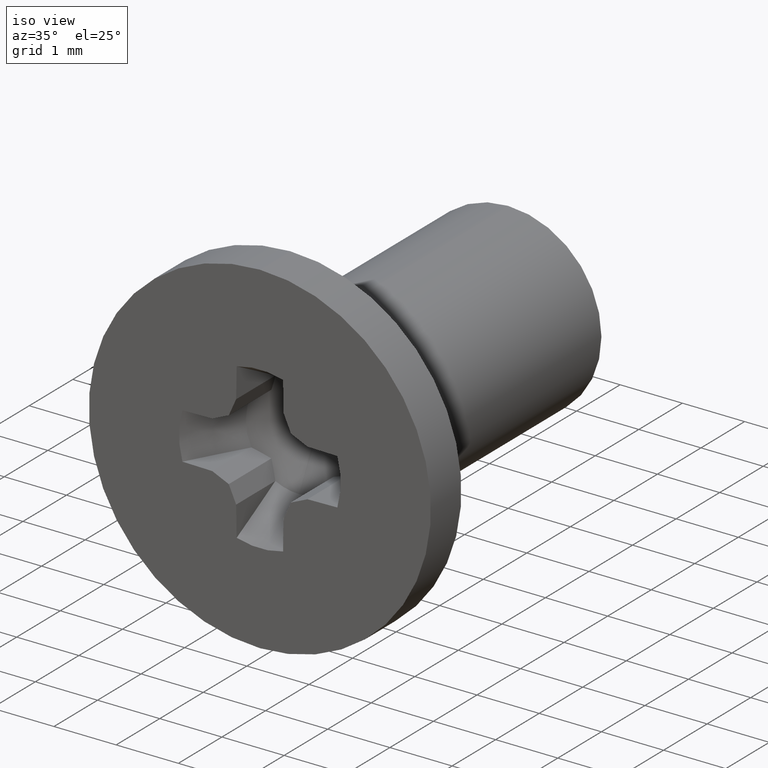
[diagram: clean part render]
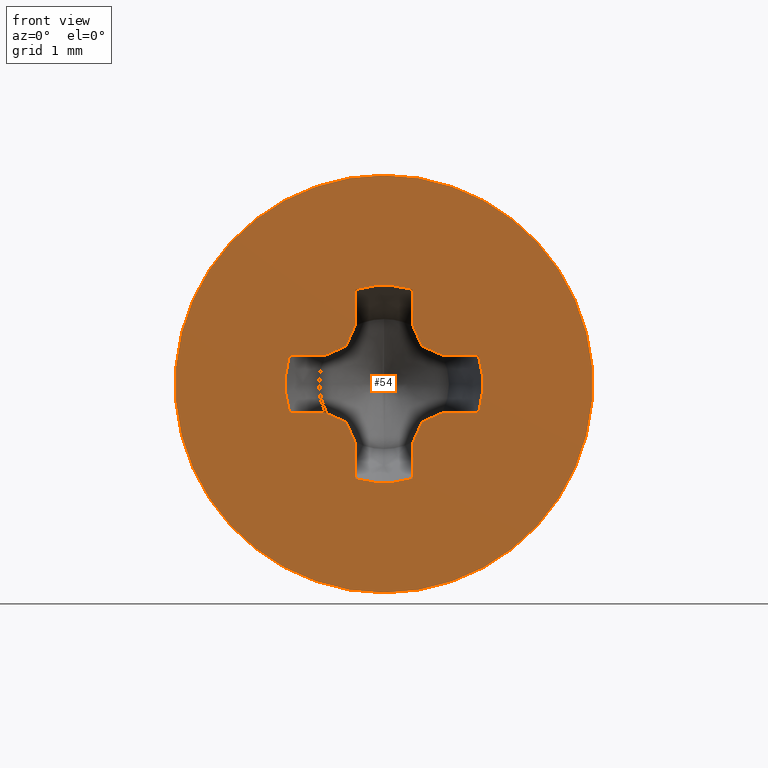
[diagram: tour spotlight — one face highlighted and labeled with its STEP entity id]
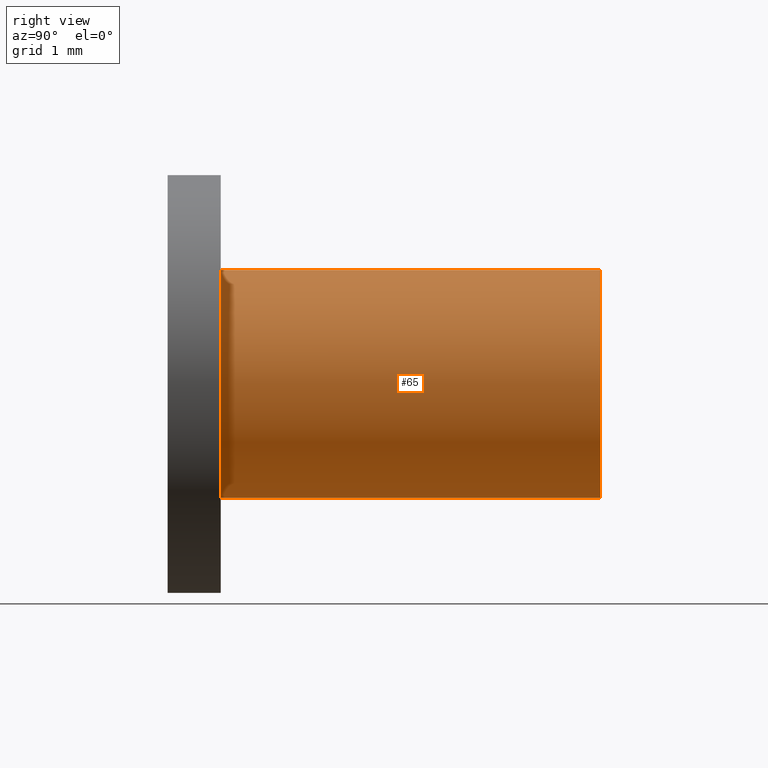
[diagram: tour spotlight — one face highlighted and labeled with its STEP entity id]
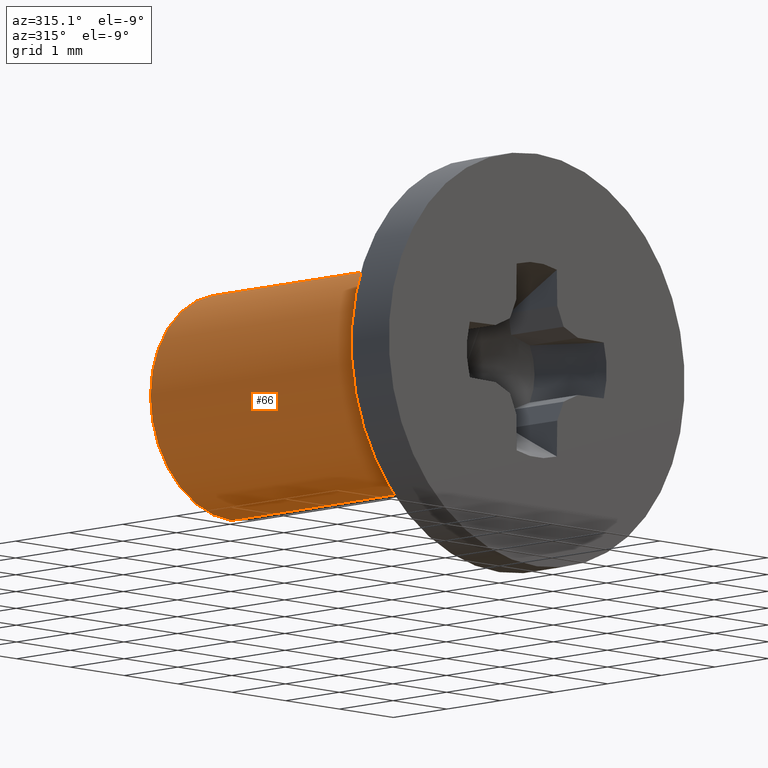
[diagram: tour spotlight — one face highlighted and labeled with its STEP entity id]
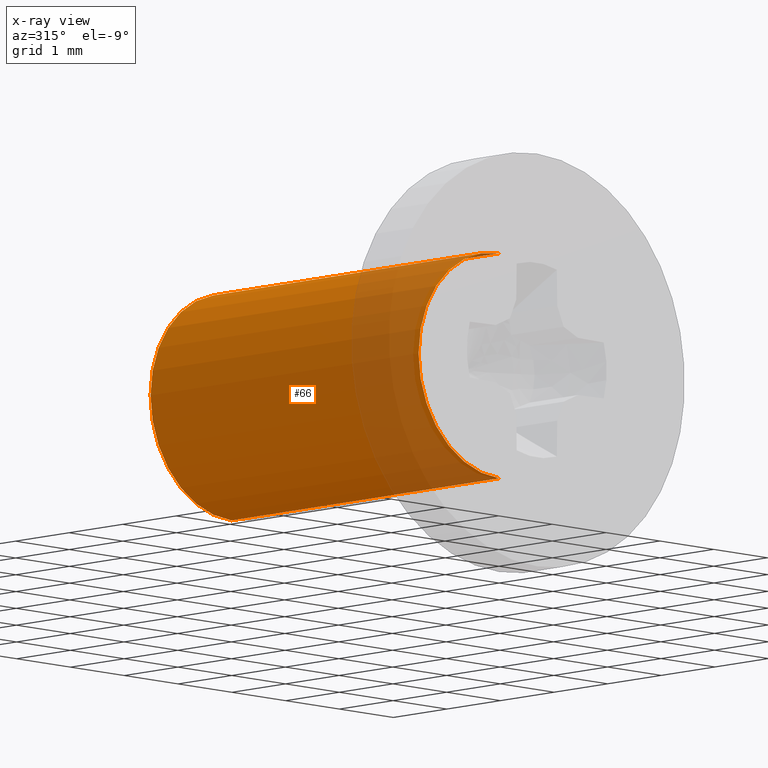
[diagram: x-ray of the same camera — body ghosted, this tour face saturated]
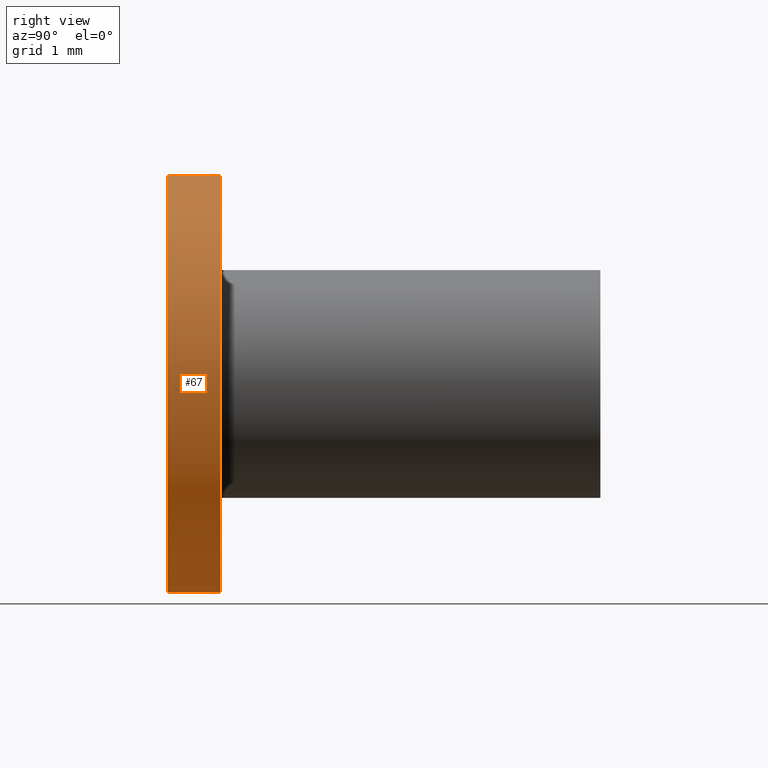
[diagram: tour spotlight — one face highlighted and labeled with its STEP entity id]
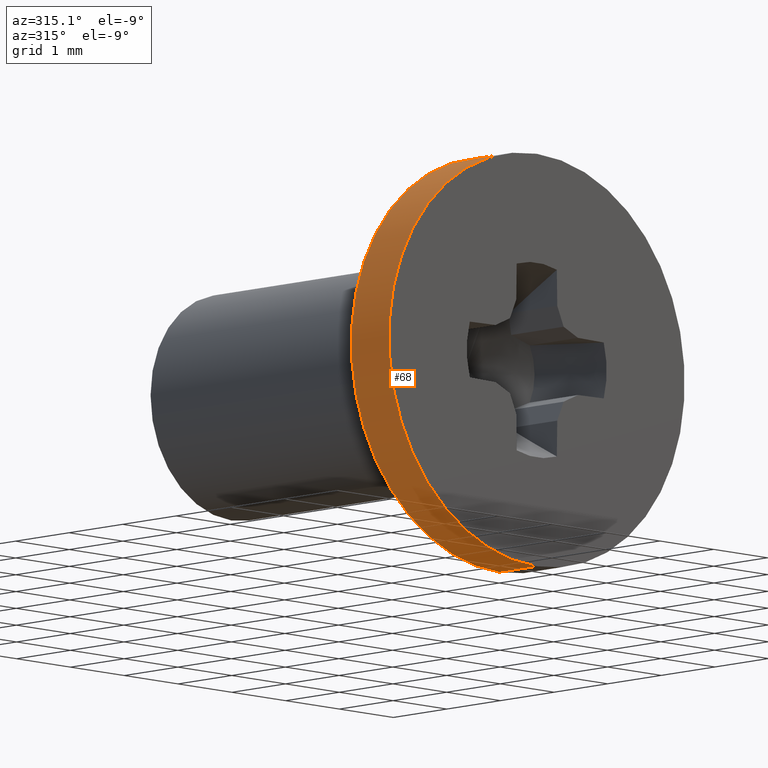
[diagram: tour spotlight — one face highlighted and labeled with its STEP entity id]
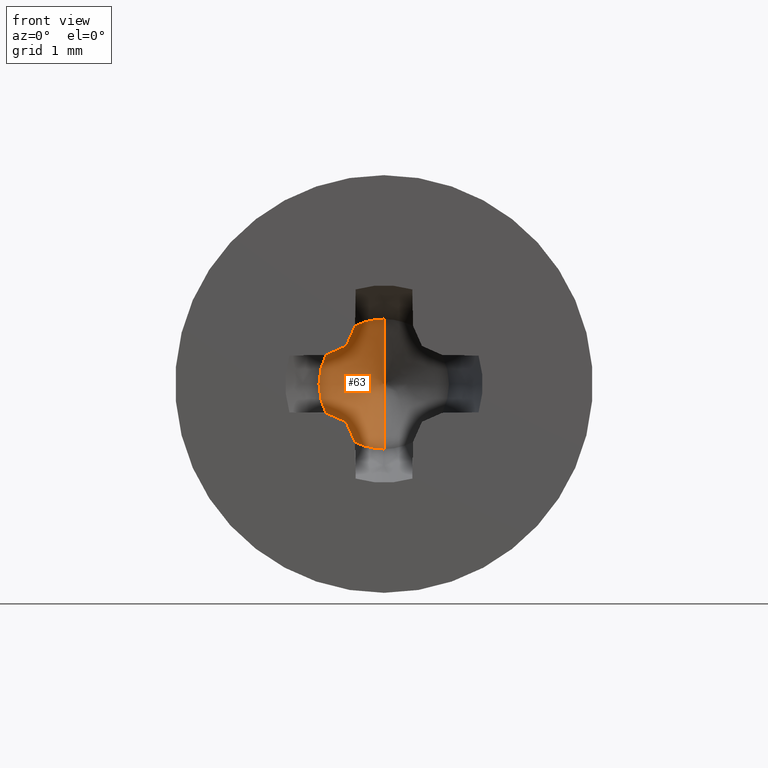
[diagram: tour spotlight — one face highlighted and labeled with its STEP entity id]
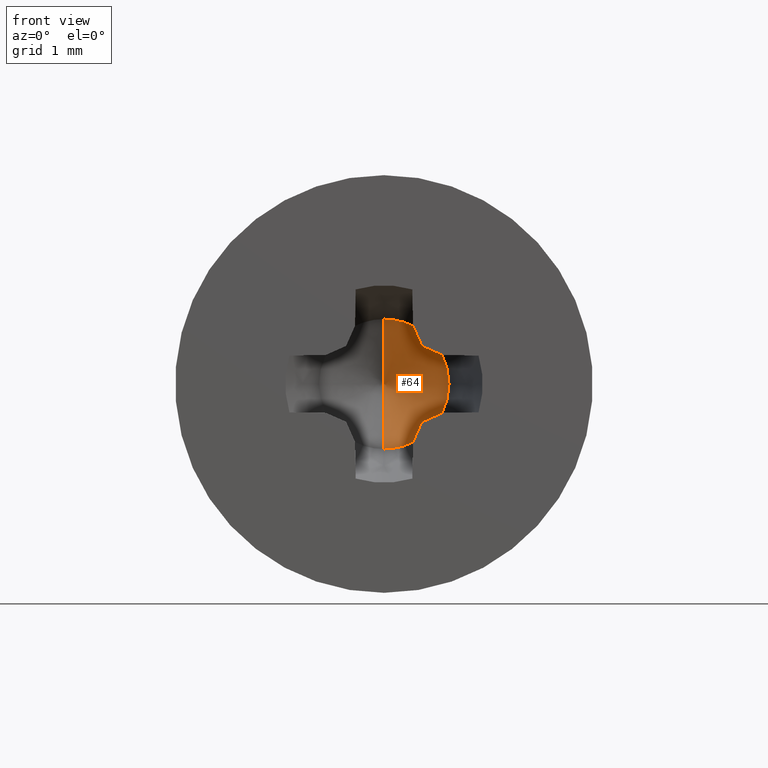
[diagram: tour spotlight — one face highlighted and labeled with its STEP entity id]
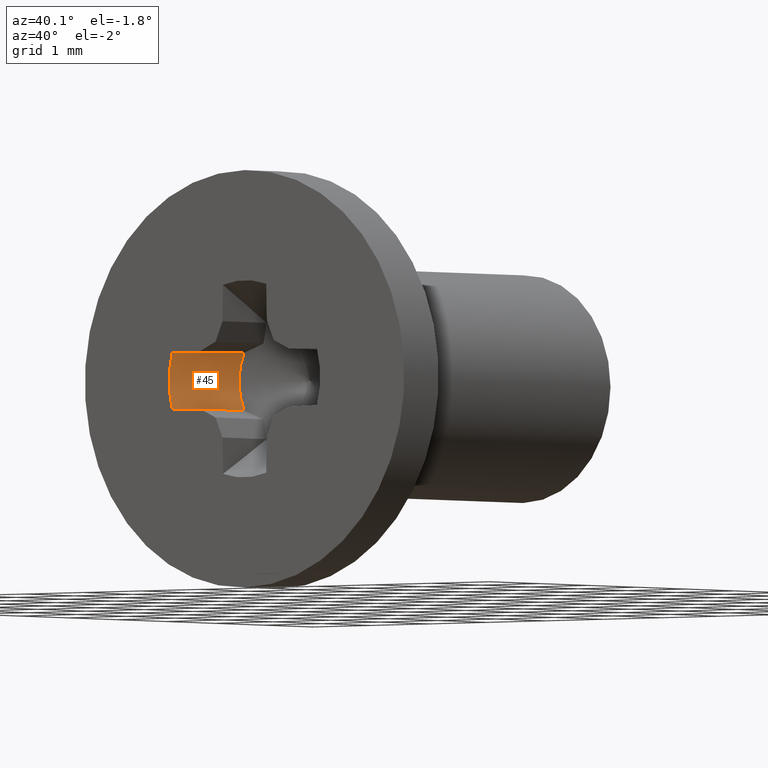
[diagram: tour spotlight — one face highlighted and labeled with its STEP entity id]
A machine part: a face-by-face anatomy tour. The part has 29 B-rep faces; the first image is the clean iso view, then the 8 largest visible faces are spotlighted one at a time (largest first), each with its STEP entity span.

Face 1 — front view, entity #54. In plain terms, the highlighted planar face has unit normal (-0, 1, 0).
Definition (entity closure, byte-faithful):
#54=ADVANCED_FACE('',(#210,#211),#209,.F.);
#209=PLANE('',#436);
#210=FACE_OUTER_BOUND('',#437,.T.);
#211=FACE_BOUND('',#438,.T.);
#433=CARTESIAN_POINT('',(-5.71576766498E+00,-7.00000000000E-01,-3.57500000000E+00));
#434=DIRECTION('',(-0.00000000000E+00,1.00000000000E+00,0.00000000000E+00));
#435=DIRECTION('',(0.00000000000E+00,-0.00000000000E+00,1.00000000000E+00));
#436=AXIS2_PLACEMENT_3D('',#433,#434,#435);
#437=EDGE_LOOP('',(#575,#576));
#438=EDGE_LOOP('',(#577,#578,#579,#580,#581,#582,#583,#584,#585,#586,#587,#588,#589,#590,#591,#592,#593,#594,#595,#596));
#575=ORIENTED_EDGE('',*,*,#702,.T.);
#576=ORIENTED_EDGE('',*,*,#703,.T.);
#577=ORIENTED_EDGE('',*,*,#704,.F.);
#578=ORIENTED_EDGE('',*,*,#683,.F.);
#579=ORIENTED_EDGE('',*,*,#688,.F.);
#580=ORIENTED_EDGE('',*,*,#691,.F.);
#581=ORIENTED_EDGE('',*,*,#693,.F.);
#582=ORIENTED_EDGE('',*,*,#705,.F.);
#583=ORIENTED_EDGE('',*,*,#694,.F.);
#584=ORIENTED_EDGE('',*,*,#699,.F.);
#585=ORIENTED_EDGE('',*,*,#701,.F.);
#586=ORIENTED_EDGE('',*,*,#666,.F.);
#587=ORIENTED_EDGE('',*,*,#678,.F.);
#588=ORIENTED_EDGE('',*,*,#673,.F.);
#589=ORIENTED_EDGE('',*,*,#706,.F.);
#590=ORIENTED_EDGE('',*,*,#670,.F.);
#591=ORIENTED_EDGE('',*,*,#672,.F.);
#592=ORIENTED_EDGE('',*,*,#707,.F.);
#593=ORIENTED_EDGE('',*,*,#708,.F.);
#594=ORIENTED_EDGE('',*,*,#709,.F.);
#595=ORIENTED_EDGE('',*,*,#710,.F.);
#596=ORIENTED_EDGE('',*,*,#682,.F.);
#666=EDGE_CURVE('',#740,#733,#747,.T.);
#670=EDGE_CURVE('',#768,#754,#775,.T.);
#672=EDGE_CURVE('',#781,#768,#788,.T.);
#673=EDGE_CURVE('',#794,#795,#796,.T.);
#678=EDGE_CURVE('',#795,#740,#829,.T.);
#682=EDGE_CURVE('',#849,#842,#856,.T.);
#683=EDGE_CURVE('',#862,#863,#864,.T.);
#688=EDGE_CURVE('',#890,#862,#897,.T.);
#691=EDGE_CURVE('',#910,#890,#917,.T.);
#693=EDGE_CURVE('',#923,#910,#930,.T.);
#694=EDGE_CURVE('',#936,#937,#938,.T.);
#699=EDGE_CURVE('',#964,#936,#971,.T.);
#701=EDGE_CURVE('',#733,#964,#983,.T.);
#702=EDGE_CURVE('',#989,#990,#991,.T.);
#703=EDGE_CURVE('',#990,#989,#997,.T.);
#704=EDGE_CURVE('',#863,#849,#1003,.T.);
#705=EDGE_CURVE('',#937,#923,#1009,.T.);
#706=EDGE_CURVE('',#754,#794,#1015,.T.);
#707=EDGE_CURVE('',#1021,#781,#1022,.T.);
#708=EDGE_CURVE('',#1028,#1021,#1029,.T.);
#709=EDGE_CURVE('',#1035,#1028,#1036,.T.);
#710=EDGE_CURVE('',#842,#1035,#1042,.T.);
#733=VERTEX_POINT('',#1184);
#740=VERTEX_POINT('',#1188);
#747=LINE('',#1193,#1194);
#754=VERTEX_POINT('',#1197);
#768=VERTEX_POINT('',#1206);
#775=LINE('',#1210,#1211);
#781=VERTEX_POINT('',#1213);
#788=LINE('',#1218,#1219);
#794=VERTEX_POINT('',#1221);
#795=VERTEX_POINT('',#1222);
#796=LINE('',#1223,#1224);
#829=CIRCLE('',#1247,1.30000000000E+00);
#842=VERTEX_POINT('',#1253);
#849=VERTEX_POINT('',#1257);
#856=LINE('',#1262,#1263);
#862=VERTEX_POINT('',#1265);
#863=VERTEX_POINT('',#1266);
#864=LINE('',#1267,#1268);
#890=VERTEX_POINT('',#1283);
#897=LINE('',#1287,#1288);
#910=VERTEX_POINT('',#1295);
#917=LINE('',#1299,#1300);
#923=VERTEX_POINT('',#1302);
#930=LINE('',#1307,#1308);
#936=VERTEX_POINT('',#1310);
#937=VERTEX_POINT('',#1311);
#938=LINE('',#1312,#1313);
#964=VERTEX_POINT('',#1328);
#971=LINE('',#1332,#1333);
#983=LINE('',#1339,#1340);
#989=VERTEX_POINT('',#1342);
#990=VERTEX_POINT('',#1343);
#991=CIRCLE('',#1347,2.75000000000E+00);
#997=CIRCLE('',#1351,2.75000000000E+00);
#1003=CIRCLE('',#1355,1.30000000000E+00);
#1009=CIRCLE('',#1359,1.30000000000E+00);
#1015=LINE('',#1360,#1361);
#1021=VERTEX_POINT('',#1363);
#1022=CIRCLE('',#1367,1.30000000000E+00);
#1028=VERTEX_POINT('',#1368);
#1029=LINE('',#1369,#1370);
#1035=VERTEX_POINT('',#1372);
#1036=LINE('',#1373,#1374);
#1042=LINE('',#1376,#1377);
#1184=CARTESIAN_POINT('',(-7.65735392644E-01,-7.00000000000E-01,-3.81326433417E-01));
#1188=CARTESIAN_POINT('',(-1.24535328831E+00,-7.00000000000E-01,-3.72954671907E-01));
#1193=CARTESIAN_POINT('',(-1.24535328831E+00,-7.00000000000E-01,-3.72954671907E-01));
#1194=VECTOR('',#1195,4.79690954921E-01);
#1195=DIRECTION('',(9.99847695156E-01,0.00000000000E+00,-1.74524064372E-02));
#1197=CARTESIAN_POINT('',(-4.99750525934E-01,-7.00000000000E-01,4.99750525934E-01));
#1206=CARTESIAN_POINT('',(-3.81326433417E-01,-7.00000000000E-01,7.65735392643E-01));
#1210=CARTESIAN_POINT('',(-3.81326433417E-01,-7.00000000000E-01,7.65735392643E-01));
#1211=VECTOR('',#1212,2.91156684634E-01);
#1212=DIRECTION('',(-4.06736643076E-01,0.00000000000E+00,-9.13545457643E-01));
#1213=CARTESIAN_POINT('',(-3.72954671907E-01,-7.00000000000E-01,1.24535328831E+00));
#1218=CARTESIAN_POINT('',(-3.72954671907E-01,-7.00000000000E-01,1.24535328831E+00));
#1219=VECTOR('',#1220,4.79690954922E-01);
#1220=DIRECTION('',(-1.74524064378E-02,0.00000000000E+00,-9.99847695156E-01));
#1221=CARTESIAN_POINT('',(-7.65735392644E-01,-7.00000000000E-01,3.81326433417E-01));
#1222=CARTESIAN_POINT('',(-1.24535328831E+00,-7.00000000000E-01,3.72954671907E-01));
#1223=CARTESIAN_POINT('',(-7.65735392644E-01,-7.00000000000E-01,3.81326433417E-01));
#1224=VECTOR('',#1225,4.79690954921E-01);
#1225=DIRECTION('',(-9.99847695156E-01,0.00000000000E+00,-1.74524064373E-02));
#1244=CARTESIAN_POINT('',(0.00000000000E+00,-7.00000000000E-01,0.00000000000E+00));
#1245=DIRECTION('',(0.00000000000E+00,-1.00000000000E+00,0.00000000000E+00));
#1246=DIRECTION('',(-0.00000000000E+00,-0.00000000000E+00,1.00000000000E+00));
#1247=AXIS2_PLACEMENT_3D('',#1244,#1245,#1246);
#1253=CARTESIAN_POINT('',(7.65735392644E-01,-7.00000000000E-01,3.81326433417E-01));
#1257=CARTESIAN_POINT('',(1.24535328831E+00,-7.00000000000E-01,3.72954671907E-01));
#1262=CARTESIAN_POINT('',(1.24535328831E+00,-7.00000000000E-01,3.72954671907E-01));
#1263=VECTOR('',#1264,4.79690954921E-01);
#1264=DIRECTION('',(-9.99847695156E-01,0.00000000000E+00,1.74524064368E-02));
#1265=CARTESIAN_POINT('',(7.65735392644E-01,-7.00000000000E-01,-3.81326433417E-01));
#1266=CARTESIAN_POINT('',(1.24535328831E+00,-7.00000000000E-01,-3.72954671907E-01));
#1267=CARTESIAN_POINT('',(7.65735392644E-01,-7.00000000000E-01,-3.81326433417E-01));
#1268=VECTOR('',#1269,4.79690954921E-01);
#1269=DIRECTION('',(9.99847695156E-01,0.00000000000E+00,1.74524064373E-02));
#1283=CARTESIAN_POINT('',(4.99750525934E-01,-7.00000000000E-01,-4.99750525934E-01));
#1287=CARTESIAN_POINT('',(4.99750525934E-01,-7.00000000000E-01,-4.99750525934E-01));
#1288=VECTOR('',#1289,2.91156684634E-01);
#1289=DIRECTION('',(9.13545457643E-01,0.00000000000E+00,4.06736643076E-01));
#1295=CARTESIAN_POINT('',(3.81326433417E-01,-7.00000000000E-01,-7.65735392644E-01));
#1299=CARTESIAN_POINT('',(3.81326433417E-01,-7.00000000000E-01,-7.65735392644E-01));
#1300=VECTOR('',#1301,2.91156684634E-01);
#1301=DIRECTION('',(4.06736643076E-01,0.00000000000E+00,9.13545457642E-01));
#1302=CARTESIAN_POINT('',(3.72954671907E-01,-7.00000000000E-01,-1.24535328831E+00));
#1307=CARTESIAN_POINT('',(3.72954671907E-01,-7.00000000000E-01,-1.24535328831E+00));
#1308=VECTOR('',#1309,4.79690954921E-01);
#1309=DIRECTION('',(1.74524064372E-02,0.00000000000E+00,9.99847695156E-01));
#1310=CARTESIAN_POINT('',(-3.81326433417E-01,-7.00000000000E-01,-7.65735392644E-01));
#1311=CARTESIAN_POINT('',(-3.72954671907E-01,-7.00000000000E-01,-1.24535328831E+00));
#1312=CARTESIAN_POINT('',(-3.81326433417E-01,-7.00000000000E-01,-7.65735392644E-01));
#1313=VECTOR('',#1314,4.79690954922E-01);
#1314=DIRECTION('',(1.74524064372E-02,0.00000000000E+00,-9.99847695156E-01));
#1328=CARTESIAN_POINT('',(-4.99750525934E-01,-7.00000000000E-01,-4.99750525934E-01));
#1332=CARTESIAN_POINT('',(-4.99750525934E-01,-7.00000000000E-01,-4.99750525934E-01));
#1333=VECTOR('',#1334,2.91156684634E-01);
#1334=DIRECTION('',(4.06736643076E-01,0.00000000000E+00,-9.13545457643E-01));
#1339=CARTESIAN_POINT('',(-7.65735392644E-01,-7.00000000000E-01,-3.81326433417E-01));
#1340=VECTOR('',#1341,2.91156684634E-01);
#1341=DIRECTION('',(9.13545457643E-01,0.00000000000E+00,-4.06736643076E-01));
#1342=CARTESIAN_POINT('',(0.00000000000E+00,-7.00000000000E-01,-2.75000000000E+00));
#1343=CARTESIAN_POINT('',(1.48029736617E-16,-7.00000000000E-01,2.75000000000E+00));
#1344=CARTESIAN_POINT('',(0.00000000000E+00,-7.00000000000E-01,0.00000000000E+00));
#1345=DIRECTION('',(0.00000000000E+00,-1.00000000000E+00,-0.00000000000E+00));
#1346=DIRECTION('',(-1.22460635382E-16,0.00000000000E+00,-1.00000000000E+00));
#1347=AXIS2_PLACEMENT_3D('',#1344,#1345,#1346);
#1348=CARTESIAN_POINT('',(0.00000000000E+00,-7.00000000000E-01,0.00000000000E+00));
#1349=DIRECTION('',(0.00000000000E+00,-1.00000000000E+00,-0.00000000000E+00));
#1350=DIRECTION('',(-1.22460635382E-16,0.00000000000E+00,-1.00000000000E+00));
#1351=AXIS2_PLACEMENT_3D('',#1348,#1349,#1350);
#1352=CARTESIAN_POINT('',(0.00000000000E+00,-7.00000000000E-01,0.00000000000E+00));
#1353=DIRECTION('',(0.00000000000E+00,-1.00000000000E+00,0.00000000000E+00));
#1354=DIRECTION('',(-0.00000000000E+00,-0.00000000000E+00,1.00000000000E+00));
#1355=AXIS2_PLACEMENT_3D('',#1352,#1353,#1354);
#1356=CARTESIAN_POINT('',(0.00000000000E+00,-7.00000000000E-01,0.00000000000E+00));
#1357=DIRECTION('',(0.00000000000E+00,-1.00000000000E+00,0.00000000000E+00));
#1358=DIRECTION('',(-0.00000000000E+00,-0.00000000000E+00,1.00000000000E+00));
#1359=AXIS2_PLACEMENT_3D('',#1356,#1357,#1358);
#1360=CARTESIAN_POINT('',(-4.99750525934E-01,-7.00000000000E-01,4.99750525934E-01));
#1361=VECTOR('',#1362,2.91156684634E-01);
#1362=DIRECTION('',(-9.13545457643E-01,0.00000000000E+00,-4.06736643075E-01));
#1363=CARTESIAN_POINT('',(3.72954671908E-01,-7.00000000000E-01,1.24535328831E+00));
#1364=CARTESIAN_POINT('',(0.00000000000E+00,-7.00000000000E-01,0.00000000000E+00));
#1365=DIRECTION('',(0.00000000000E+00,-1.00000000000E+00,0.00000000000E+00));
#1366=DIRECTION('',(2.86888209160E-01,0.00000000000E+00,9.57964067930E-01));
#1367=AXIS2_PLACEMENT_3D('',#1364,#1365,#1366);
#1368=CARTESIAN_POINT('',(3.81326433417E-01,-7.00000000000E-01,7.65735392643E-01));
#1369=CARTESIAN_POINT('',(3.81326433417E-01,-7.00000000000E-01,7.65735392643E-01));
#1370=VECTOR('',#1371,4.79690954922E-01);
#1371=DIRECTION('',(-1.74524064372E-02,0.00000000000E+00,9.99847695156E-01));
#1372=CARTESIAN_POINT('',(4.99750525934E-01,-7.00000000000E-01,4.99750525934E-01));
#1373=CARTESIAN_POINT('',(4.99750525934E-01,-7.00000000000E-01,4.99750525934E-01));
#1374=VECTOR('',#1375,2.91156684634E-01);
#1375=DIRECTION('',(-4.06736643076E-01,0.00000000000E+00,9.13545457643E-01));
#1376=CARTESIAN_POINT('',(7.65735392644E-01,-7.00000000000E-01,3.81326433417E-01));
#1377=VECTOR('',#1378,2.91156684634E-01);
#1378=DIRECTION('',(-9.13545457643E-01,0.00000000000E+00,4.06736643075E-01));

Face 2 — right view, entity #65. In plain terms, the highlighted cylindrical surface (partial cylindrical patch) has radius 1.5 mm, axis along (-0, 1, -0).
Definition (entity closure, byte-faithful):
#65=ADVANCED_FACE('',(#322),#321,.T.);
#321=CYLINDRICAL_SURFACE('',#511,1.50000000000E+00);
#322=FACE_OUTER_BOUND('',#512,.T.);
#508=CARTESIAN_POINT('',(0.00000000000E+00,0.00000000000E+00,0.00000000000E+00));
#509=DIRECTION('',(-0.00000000000E+00,1.00000000000E+00,-0.00000000000E+00));
#510=DIRECTION('',(-0.00000000000E+00,-0.00000000000E+00,1.00000000000E+00));
#511=AXIS2_PLACEMENT_3D('',#508,#509,#510);
#512=EDGE_LOOP('',(#648,#649,#650,#651));
#648=ORIENTED_EDGE('',*,*,#677,.F.);
#649=ORIENTED_EDGE('',*,*,#728,.F.);
#650=ORIENTED_EDGE('',*,*,#713,.F.);
#651=ORIENTED_EDGE('',*,*,#729,.T.);
#677=EDGE_CURVE('',#816,#815,#823,.T.);
#713=EDGE_CURVE('',#1062,#1063,#1064,.T.);
#728=EDGE_CURVE('',#1063,#816,#1159,.T.);
#729=EDGE_CURVE('',#1062,#815,#1165,.T.);
#815=VERTEX_POINT('',#1234);
#816=VERTEX_POINT('',#1235);
#823=CIRCLE('',#1243,1.50000000000E+00);
#1062=VERTEX_POINT('',#1389);
#1063=VERTEX_POINT('',#1390);
#1064=CIRCLE('',#1394,1.50000000000E+00);
#1159=(BOUNDED_CURVE() B_SPLINE_CURVE(1,(#1450,#1451),.UNSPECIFIED.,.F.,.F.) B_SPLINE_CURVE_WITH_KNOTS((2,2),(8.33333283663E-02,9.16666663731E-01),.UNSPECIFIED.) CURVE() GEOMETRIC_REPRESENTATION_ITEM() RATIONAL_B_SPLINE_CURVE((1.00000000000E+00,1.00000000000E+00)) REPRESENTATION_ITEM('') );
#1165=(BOUNDED_CURVE() B_SPLINE_CURVE(1,(#1452,#1453),.UNSPECIFIED.,.F.,.F.) B_SPLINE_CURVE_WITH_KNOTS((2,2),(8.33333333333E-02,9.16666666667E-01),.UNSPECIFIED.) CURVE() GEOMETRIC_REPRESENTATION_ITEM() RATIONAL_B_SPLINE_CURVE((7.50000000000E-01,7.50000000000E-01)) REPRESENTATION_ITEM('') );
#1234=CARTESIAN_POINT('',(0.00000000000E+00,5.00000000000E+00,-1.50000000000E+00));
#1235=CARTESIAN_POINT('',(2.96059473233E-16,5.00000000000E+00,1.50000000000E+00));
#1240=CARTESIAN_POINT('',(0.00000000000E+00,5.00000000000E+00,0.00000000000E+00));
#1241=DIRECTION('',(0.00000000000E+00,1.00000000000E+00,0.00000000000E+00));
#1242=DIRECTION('',(-1.22460635382E-16,0.00000000000E+00,-1.00000000000E+00));
#1243=AXIS2_PLACEMENT_3D('',#1240,#1241,#1242);
#1389=CARTESIAN_POINT('',(0.00000000000E+00,8.88178419700E-15,-1.50000000000E+00));
#1390=CARTESIAN_POINT('',(-7.40148683083E-17,8.88178419700E-15,1.50000000000E+00));
#1391=CARTESIAN_POINT('',(0.00000000000E+00,8.88178419700E-15,0.00000000000E+00));
#1392=DIRECTION('',(0.00000000000E+00,-1.00000000000E+00,-0.00000000000E+00));
#1393=DIRECTION('',(-1.22460635382E-16,0.00000000000E+00,-1.00000000000E+00));
#1394=AXIS2_PLACEMENT_3D('',#1391,#1392,#1393);
#1450=CARTESIAN_POINT('',(0.00000000000E+00,-2.98023135059E-08,1.50000000000E+00));
#1451=CARTESIAN_POINT('',(0.00000000000E+00,4.99999998239E+00,1.50000000000E+00));
#1452=CARTESIAN_POINT('',(0.00000000000E+00,8.80776932869E-15,-1.50000000000E+00));
#1453=CARTESIAN_POINT('',(0.00000000000E+00,5.00000000000E+00,-1.50000000000E+00));

Face 3 — auxiliary view, entity #66. An x-ray twin of the same camera follows (body ghosted, this face saturated) — the face is partly hidden behind the body. In plain terms, the highlighted cylindrical surface (partial cylindrical patch) has radius 1.5 mm, axis along (-0, 1, -0).
Definition (entity closure, byte-faithful):
#66=ADVANCED_FACE('',(#332),#331,.T.);
#331=CYLINDRICAL_SURFACE('',#516,1.50000000000E+00);
#332=FACE_OUTER_BOUND('',#517,.T.);
#513=CARTESIAN_POINT('',(0.00000000000E+00,0.00000000000E+00,0.00000000000E+00));
#514=DIRECTION('',(-0.00000000000E+00,1.00000000000E+00,-0.00000000000E+00));
#515=DIRECTION('',(-0.00000000000E+00,-0.00000000000E+00,1.00000000000E+00));
#516=AXIS2_PLACEMENT_3D('',#513,#514,#515);
#517=EDGE_LOOP('',(#652,#653,#654,#655));
#652=ORIENTED_EDGE('',*,*,#714,.F.);
#653=ORIENTED_EDGE('',*,*,#728,.T.);
#654=ORIENTED_EDGE('',*,*,#676,.F.);
#655=ORIENTED_EDGE('',*,*,#729,.F.);
#676=EDGE_CURVE('',#815,#816,#817,.T.);
#714=EDGE_CURVE('',#1063,#1062,#1070,.T.);
#728=EDGE_CURVE('',#1063,#816,#1159,.T.);
#729=EDGE_CURVE('',#1062,#815,#1165,.T.);
#815=VERTEX_POINT('',#1234);
#816=VERTEX_POINT('',#1235);
#817=CIRCLE('',#1239,1.50000000000E+00);
#1062=VERTEX_POINT('',#1389);
#1063=VERTEX_POINT('',#1390);
#1070=CIRCLE('',#1398,1.50000000000E+00);
#1159=(BOUNDED_CURVE() B_SPLINE_CURVE(1,(#1450,#1451),.UNSPECIFIED.,.F.,.F.) B_SPLINE_CURVE_WITH_KNOTS((2,2),(8.33333283663E-02,9.16666663731E-01),.UNSPECIFIED.) CURVE() GEOMETRIC_REPRESENTATION_ITEM() RATIONAL_B_SPLINE_CURVE((1.00000000000E+00,1.00000000000E+00)) REPRESENTATION_ITEM('') );
#1165=(BOUNDED_CURVE() B_SPLINE_CURVE(1,(#1452,#1453),.UNSPECIFIED.,.F.,.F.) B_SPLINE_CURVE_WITH_KNOTS((2,2),(8.33333333333E-02,9.16666666667E-01),.UNSPECIFIED.) CURVE() GEOMETRIC_REPRESENTATION_ITEM() RATIONAL_B_SPLINE_CURVE((7.50000000000E-01,7.50000000000E-01)) REPRESENTATION_ITEM('') );
#1234=CARTESIAN_POINT('',(0.00000000000E+00,5.00000000000E+00,-1.50000000000E+00));
#1235=CARTESIAN_POINT('',(2.96059473233E-16,5.00000000000E+00,1.50000000000E+00));
#1236=CARTESIAN_POINT('',(0.00000000000E+00,5.00000000000E+00,0.00000000000E+00));
#1237=DIRECTION('',(0.00000000000E+00,1.00000000000E+00,0.00000000000E+00));
#1238=DIRECTION('',(-1.22460635382E-16,0.00000000000E+00,-1.00000000000E+00));
#1239=AXIS2_PLACEMENT_3D('',#1236,#1237,#1238);
#1389=CARTESIAN_POINT('',(0.00000000000E+00,8.88178419700E-15,-1.50000000000E+00));
#1390=CARTESIAN_POINT('',(-7.40148683083E-17,8.88178419700E-15,1.50000000000E+00));
#1395=CARTESIAN_POINT('',(0.00000000000E+00,8.88178419700E-15,0.00000000000E+00));
#1396=DIRECTION('',(0.00000000000E+00,-1.00000000000E+00,-0.00000000000E+00));
#1397=DIRECTION('',(-1.22460635382E-16,0.00000000000E+00,-1.00000000000E+00));
#1398=AXIS2_PLACEMENT_3D('',#1395,#1396,#1397);
#1450=CARTESIAN_POINT('',(0.00000000000E+00,-2.98023135059E-08,1.50000000000E+00));
#1451=CARTESIAN_POINT('',(0.00000000000E+00,4.99999998239E+00,1.50000000000E+00));
#1452=CARTESIAN_POINT('',(0.00000000000E+00,8.80776932869E-15,-1.50000000000E+00));
#1453=CARTESIAN_POINT('',(0.00000000000E+00,5.00000000000E+00,-1.50000000000E+00));

Face 4 — right view, entity #67. In plain terms, the highlighted cylindrical surface (partial cylindrical patch) has radius 2.75 mm, axis along (-0, 1, -0).
Definition (entity closure, byte-faithful):
#67=ADVANCED_FACE('',(#342),#341,.T.);
#341=CYLINDRICAL_SURFACE('',#521,2.75000000000E+00);
#342=FACE_OUTER_BOUND('',#522,.T.);
#518=CARTESIAN_POINT('',(0.00000000000E+00,0.00000000000E+00,0.00000000000E+00));
#519=DIRECTION('',(-0.00000000000E+00,1.00000000000E+00,-0.00000000000E+00));
#520=DIRECTION('',(-0.00000000000E+00,-0.00000000000E+00,1.00000000000E+00));
#521=AXIS2_PLACEMENT_3D('',#518,#519,#520);
#522=EDGE_LOOP('',(#656,#657,#658,#659));
#656=ORIENTED_EDGE('',*,*,#712,.T.);
#657=ORIENTED_EDGE('',*,*,#730,.F.);
#658=ORIENTED_EDGE('',*,*,#702,.F.);
#659=ORIENTED_EDGE('',*,*,#731,.T.);
#702=EDGE_CURVE('',#989,#990,#991,.T.);
#712=EDGE_CURVE('',#1049,#1048,#1056,.T.);
#730=EDGE_CURVE('',#990,#1048,#1171,.T.);
#731=EDGE_CURVE('',#989,#1049,#1177,.T.);
#989=VERTEX_POINT('',#1342);
#990=VERTEX_POINT('',#1343);
#991=CIRCLE('',#1347,2.75000000000E+00);
#1048=VERTEX_POINT('',#1379);
#1049=VERTEX_POINT('',#1380);
#1056=CIRCLE('',#1388,2.75000000000E+00);
#1171=(BOUNDED_CURVE() B_SPLINE_CURVE(1,(#1454,#1455),.UNSPECIFIED.,.F.,.F.) B_SPLINE_CURVE_WITH_KNOTS((2,2),(8.33332935974E-02,9.16666633252E-01),.UNSPECIFIED.) CURVE() GEOMETRIC_REPRESENTATION_ITEM() RATIONAL_B_SPLINE_CURVE((1.00000000000E+00,1.00000000000E+00)) REPRESENTATION_ITEM('') );
#1177=(BOUNDED_CURVE() B_SPLINE_CURVE(1,(#1456,#1457),.UNSPECIFIED.,.F.,.F.) B_SPLINE_CURVE_WITH_KNOTS((2,2),(8.33333333333E-02,9.16666666667E-01),.UNSPECIFIED.) CURVE() GEOMETRIC_REPRESENTATION_ITEM() RATIONAL_B_SPLINE_CURVE((7.50000000000E-01,7.50000000000E-01)) REPRESENTATION_ITEM('') );
#1342=CARTESIAN_POINT('',(0.00000000000E+00,-7.00000000000E-01,-2.75000000000E+00));
#1343=CARTESIAN_POINT('',(1.48029736617E-16,-7.00000000000E-01,2.75000000000E+00));
#1344=CARTESIAN_POINT('',(0.00000000000E+00,-7.00000000000E-01,0.00000000000E+00));
#1345=DIRECTION('',(0.00000000000E+00,-1.00000000000E+00,-0.00000000000E+00));
#1346=DIRECTION('',(-1.22460635382E-16,0.00000000000E+00,-1.00000000000E+00));
#1347=AXIS2_PLACEMENT_3D('',#1344,#1345,#1346);
#1379=CARTESIAN_POINT('',(1.48029736617E-16,1.77635683940E-14,2.75000000000E+00));
#1380=CARTESIAN_POINT('',(0.00000000000E+00,1.77635683940E-14,-2.75000000000E+00));
#1385=CARTESIAN_POINT('',(0.00000000000E+00,1.77635683940E-14,0.00000000000E+00));
#1386=DIRECTION('',(0.00000000000E+00,-1.00000000000E+00,-0.00000000000E+00));
#1387=DIRECTION('',(-1.22460635382E-16,0.00000000000E+00,-1.00000000000E+00));
#1388=AXIS2_PLACEMENT_3D('',#1385,#1386,#1387);
#1454=CARTESIAN_POINT('',(0.00000000000E+00,-7.00000033378E-01,2.75000000000E+00));
#1455=CARTESIAN_POINT('',(0.00000000000E+00,-2.80686960480E-08,2.75000000000E+00));
#1456=CARTESIAN_POINT('',(0.00000000000E+00,-7.00000000000E-01,-2.75000000000E+00));
#1457=CARTESIAN_POINT('',(0.00000000000E+00,1.77820721111E-14,-2.75000000000E+00));

Face 5 — auxiliary view, entity #68. In plain terms, the highlighted cylindrical surface (partial cylindrical patch) has radius 2.75 mm, axis along (-0, 1, -0).
Definition (entity closure, byte-faithful):
#68=ADVANCED_FACE('',(#352),#351,.T.);
#351=CYLINDRICAL_SURFACE('',#526,2.75000000000E+00);
#352=FACE_OUTER_BOUND('',#527,.T.);
#523=CARTESIAN_POINT('',(0.00000000000E+00,0.00000000000E+00,0.00000000000E+00));
#524=DIRECTION('',(-0.00000000000E+00,1.00000000000E+00,-0.00000000000E+00));
#525=DIRECTION('',(-0.00000000000E+00,-0.00000000000E+00,1.00000000000E+00));
#526=AXIS2_PLACEMENT_3D('',#523,#524,#525);
#527=EDGE_LOOP('',(#660,#661,#662,#663));
#660=ORIENTED_EDGE('',*,*,#703,.F.);
#661=ORIENTED_EDGE('',*,*,#730,.T.);
#662=ORIENTED_EDGE('',*,*,#711,.T.);
#663=ORIENTED_EDGE('',*,*,#731,.F.);
#703=EDGE_CURVE('',#990,#989,#997,.T.);
#711=EDGE_CURVE('',#1048,#1049,#1050,.T.);
#730=EDGE_CURVE('',#990,#1048,#1171,.T.);
#731=EDGE_CURVE('',#989,#1049,#1177,.T.);
#989=VERTEX_POINT('',#1342);
#990=VERTEX_POINT('',#1343);
#997=CIRCLE('',#1351,2.75000000000E+00);
#1048=VERTEX_POINT('',#1379);
#1049=VERTEX_POINT('',#1380);
#1050=CIRCLE('',#1384,2.75000000000E+00);
#1171=(BOUNDED_CURVE() B_SPLINE_CURVE(1,(#1454,#1455),.UNSPECIFIED.,.F.,.F.) B_SPLINE_CURVE_WITH_KNOTS((2,2),(8.33332935974E-02,9.16666633252E-01),.UNSPECIFIED.) CURVE() GEOMETRIC_REPRESENTATION_ITEM() RATIONAL_B_SPLINE_CURVE((1.00000000000E+00,1.00000000000E+00)) REPRESENTATION_ITEM('') );
#1177=(BOUNDED_CURVE() B_SPLINE_CURVE(1,(#1456,#1457),.UNSPECIFIED.,.F.,.F.) B_SPLINE_CURVE_WITH_KNOTS((2,2),(8.33333333333E-02,9.16666666667E-01),.UNSPECIFIED.) CURVE() GEOMETRIC_REPRESENTATION_ITEM() RATIONAL_B_SPLINE_CURVE((7.50000000000E-01,7.50000000000E-01)) REPRESENTATION_ITEM('') );
#1342=CARTESIAN_POINT('',(0.00000000000E+00,-7.00000000000E-01,-2.75000000000E+00));
#1343=CARTESIAN_POINT('',(1.48029736617E-16,-7.00000000000E-01,2.75000000000E+00));
#1348=CARTESIAN_POINT('',(0.00000000000E+00,-7.00000000000E-01,0.00000000000E+00));
#1349=DIRECTION('',(0.00000000000E+00,-1.00000000000E+00,-0.00000000000E+00));
#1350=DIRECTION('',(-1.22460635382E-16,0.00000000000E+00,-1.00000000000E+00));
#1351=AXIS2_PLACEMENT_3D('',#1348,#1349,#1350);
#1379=CARTESIAN_POINT('',(1.48029736617E-16,1.77635683940E-14,2.75000000000E+00));
#1380=CARTESIAN_POINT('',(0.00000000000E+00,1.77635683940E-14,-2.75000000000E+00));
#1381=CARTESIAN_POINT('',(0.00000000000E+00,1.77635683940E-14,0.00000000000E+00));
#1382=DIRECTION('',(0.00000000000E+00,-1.00000000000E+00,-0.00000000000E+00));
#1383=DIRECTION('',(-1.22460635382E-16,0.00000000000E+00,-1.00000000000E+00));
#1384=AXIS2_PLACEMENT_3D('',#1381,#1382,#1383);
#1454=CARTESIAN_POINT('',(0.00000000000E+00,-7.00000033378E-01,2.75000000000E+00));
#1455=CARTESIAN_POINT('',(0.00000000000E+00,-2.80686960480E-08,2.75000000000E+00));
#1456=CARTESIAN_POINT('',(0.00000000000E+00,-7.00000000000E-01,-2.75000000000E+00));
#1457=CARTESIAN_POINT('',(0.00000000000E+00,1.77820721111E-14,-2.75000000000E+00));

Face 6 — front view, entity #63. In plain terms, the highlighted face is a freeform B-spline surface patch.
Definition (entity closure, byte-faithful):
#63=ADVANCED_FACE('',(#302),#301,.F.);
#301=( BOUNDED_SURFACE() B_SPLINE_SURFACE( 2,1,((#486,#487),(#488,#489),(#490,#491),(#492,#493),(#494,#495)), .UNSPECIFIED.,.F.,.F.,.F.) B_SPLINE_SURFACE_WITH_KNOTS((3,2,3),(2,2),(0.00000000000E+00,5.00000000000E-01,1.00000000000E+00),(0.00000000000E+00,1.00000000000E+00), .UNSPECIFIED. ) GEOMETRIC_REPRESENTATION_ITEM() RATIONAL_B_SPLINE_SURFACE(((1.00000000000E+00,1.00000000000E+00),(7.07106781187E-01,7.07106781187E-01),(1.00000000000E+00,1.00000000000E+00),(7.07106781187E-01,7.07106781187E-01),(1.00000000000E+00,1.00000000000E+00))) REPRESENTATION_ITEM('') SURFACE() );
#302=FACE_OUTER_BOUND('',#496,.T.);
#486=CARTESIAN_POINT('',(0.00000000000E+00,6.54359191066E-01,0.00000000000E+00));
#487=CARTESIAN_POINT('',(-2.96305926905E-16,1.11179883701E-02,1.20976075351E+00));
#488=CARTESIAN_POINT('',(0.00000000000E+00,6.54359191066E-01,0.00000000000E+00));
#489=CARTESIAN_POINT('',(-1.20976075351E+00,1.11179883701E-02,1.20976075351E+00));
#490=CARTESIAN_POINT('',(0.00000000000E+00,6.54359191066E-01,0.00000000000E+00));
#491=CARTESIAN_POINT('',(-1.20976075351E+00,1.11179883701E-02,-2.22229445178E-16));
#492=CARTESIAN_POINT('',(0.00000000000E+00,6.54359191066E-01,0.00000000000E+00));
#493=CARTESIAN_POINT('',(-1.20976075351E+00,1.11179883701E-02,-1.20976075351E+00));
#494=CARTESIAN_POINT('',(0.00000000000E+00,6.54359191066E-01,0.00000000000E+00));
#495=CARTESIAN_POINT('',(1.48152963452E-16,1.11179883701E-02,-1.20976075351E+00));
#496=EDGE_LOOP('',(#630,#631,#632,#633,#634,#635,#636,#637,#638));
#630=ORIENTED_EDGE('',*,*,#726,.T.);
#631=ORIENTED_EDGE('',*,*,#720,.T.);
#632=ORIENTED_EDGE('',*,*,#668,.F.);
#633=ORIENTED_EDGE('',*,*,#725,.F.);
#634=ORIENTED_EDGE('',*,*,#679,.T.);
#635=ORIENTED_EDGE('',*,*,#700,.F.);
#636=ORIENTED_EDGE('',*,*,#697,.F.);
#637=ORIENTED_EDGE('',*,*,#719,.T.);
#638=ORIENTED_EDGE('',*,*,#727,.F.);
#668=EDGE_CURVE('',#753,#761,#762,.T.);
#679=EDGE_CURVE('',#802,#732,#835,.T.);
#697=EDGE_CURVE('',#944,#957,#958,.T.);
#700=EDGE_CURVE('',#957,#732,#977,.T.);
#719=EDGE_CURVE('',#944,#1095,#1102,.T.);
#720=EDGE_CURVE('',#1108,#761,#1109,.T.);
#725=EDGE_CURVE('',#802,#753,#1140,.T.);
#726=EDGE_CURVE('',#1146,#1108,#1147,.T.);
#727=EDGE_CURVE('',#1146,#1095,#1153,.T.);
#732=VERTEX_POINT('',#1183);
#753=VERTEX_POINT('',#1196);
#761=VERTEX_POINT('',#1201);
#762=(BOUNDED_CURVE() B_SPLINE_CURVE(3,(#1202,#1203,#1204,#1205),.UNSPECIFIED.,.F.,.F.) B_SPLINE_CURVE_WITH_KNOTS((4,4),(3.55343745428E-04,6.54906046522E-04),.UNSPECIFIED.) CURVE() GEOMETRIC_REPRESENTATION_ITEM() RATIONAL_B_SPLINE_CURVE((1.00000000000E+00,1.00000000000E+00,1.00000000000E+00,1.00000000000E+00)) REPRESENTATION_ITEM('') );
#802=VERTEX_POINT('',#1226);
#835=CIRCLE('',#1251,8.55430032422E-01);
#944=VERTEX_POINT('',#1315);
#957=VERTEX_POINT('',#1323);
#958=(BOUNDED_CURVE() B_SPLINE_CURVE(3,(#1324,#1325,#1326,#1327),.UNSPECIFIED.,.F.,.F.) B_SPLINE_CURVE_WITH_KNOTS((4,4),(3.80303712241E-04,6.81608863542E-04),.UNSPECIFIED.) CURVE() GEOMETRIC_REPRESENTATION_ITEM() RATIONAL_B_SPLINE_CURVE((1.00000000000E+00,1.00000000000E+00,1.00000000000E+00,1.00000000000E+00)) REPRESENTATION_ITEM('') );
#977=(BOUNDED_CURVE() B_SPLINE_CURVE(3,(#1335,#1336,#1337,#1338),.UNSPECIFIED.,.F.,.F.) B_SPLINE_CURVE_WITH_KNOTS((4,4),(3.55343745428E-04,6.54906046522E-04),.UNSPECIFIED.) CURVE() GEOMETRIC_REPRESENTATION_ITEM() RATIONAL_B_SPLINE_CURVE((1.00000000000E+00,1.00000000000E+00,1.00000000000E+00,1.00000000000E+00)) REPRESENTATION_ITEM('') );
#1095=VERTEX_POINT('',#1411);
#1102=CIRCLE('',#1419,8.55430032422E-01);
#1108=VERTEX_POINT('',#1420);
#1109=CIRCLE('',#1424,8.55430032422E-01);
#1140=(BOUNDED_CURVE() B_SPLINE_CURVE(3,(#1441,#1442,#1443,#1444),.UNSPECIFIED.,.F.,.F.) B_SPLINE_CURVE_WITH_KNOTS((4,4),(3.80303712241E-04,6.81608863543E-04),.UNSPECIFIED.) CURVE() GEOMETRIC_REPRESENTATION_ITEM() RATIONAL_B_SPLINE_CURVE((1.00000000000E+00,1.00000000000E+00,1.00000000000E+00,1.00000000000E+00)) REPRESENTATION_ITEM('') );
#1146=VERTEX_POINT('',#1445);
#1147=(BOUNDED_CURVE() B_SPLINE_CURVE(1,(#1446,#1447),.UNSPECIFIED.,.F.,.F.) B_SPLINE_CURVE_WITH_KNOTS((2,2),(0.00000000000E+00,7.07106769086E-01),.UNSPECIFIED.) CURVE() GEOMETRIC_REPRESENTATION_ITEM() RATIONAL_B_SPLINE_CURVE((1.00000000000E+00,1.00000000000E+00)) REPRESENTATION_ITEM('') );
#1153=(BOUNDED_CURVE() B_SPLINE_CURVE(1,(#1448,#1449),.UNSPECIFIED.,.F.,.F.) B_SPLINE_CURVE_WITH_KNOTS((2,2),(0.00000000000E+00,7.07106764089E-01),.UNSPECIFIED.) CURVE() GEOMETRIC_REPRESENTATION_ITEM() RATIONAL_B_SPLINE_CURVE((7.50000000000E-01,7.50000000000E-01)) REPRESENTATION_ITEM('') );
#1183=CARTESIAN_POINT('',(-7.65735392644E-01,1.99518974701E-01,-3.81326433417E-01));
#1196=CARTESIAN_POINT('',(-4.99750525934E-01,2.78571438514E-01,4.99750525934E-01));
#1201=CARTESIAN_POINT('',(-3.81326433417E-01,1.99518974701E-01,7.65735392643E-01));
#1202=CARTESIAN_POINT('',(-4.99750525934E-01,2.78571438514E-01,4.99750525934E-01));
#1203=CARTESIAN_POINT('',(-4.59661902178E-01,2.59790755910E-01,5.89791049105E-01));
#1204=CARTESIAN_POINT('',(-4.20037344964E-01,2.31726379474E-01,6.78789261757E-01));
#1205=CARTESIAN_POINT('',(-3.81326433417E-01,1.99518974701E-01,7.65735392643E-01));
#1226=CARTESIAN_POINT('',(-7.65735392643E-01,1.99518974701E-01,3.81326433417E-01));
#1248=CARTESIAN_POINT('',(0.00000000000E+00,1.99518974701E-01,0.00000000000E+00));
#1249=DIRECTION('',(0.00000000000E+00,-1.00000000000E+00,0.00000000000E+00));
#1250=DIRECTION('',(-0.00000000000E+00,-0.00000000000E+00,1.00000000000E+00));
#1251=AXIS2_PLACEMENT_3D('',#1248,#1249,#1250);
#1315=CARTESIAN_POINT('',(-3.81326433417E-01,1.99518974701E-01,-7.65735392643E-01));
#1323=CARTESIAN_POINT('',(-4.99750525934E-01,2.78571438514E-01,-4.99750525934E-01));
#1324=CARTESIAN_POINT('',(-3.81326433417E-01,1.99518974701E-01,-7.65735392643E-01));
#1325=CARTESIAN_POINT('',(-4.20023463878E-01,2.31714830436E-01,-6.78820439187E-01));
#1326=CARTESIAN_POINT('',(-4.59291714422E-01,2.59617330682E-01,-5.90622504417E-01));
#1327=CARTESIAN_POINT('',(-4.99750525934E-01,2.78571438514E-01,-4.99750525934E-01));
#1335=CARTESIAN_POINT('',(-4.99750525934E-01,2.78571438514E-01,-4.99750525934E-01));
#1336=CARTESIAN_POINT('',(-5.89791049105E-01,2.59790755910E-01,-4.59661902178E-01));
#1337=CARTESIAN_POINT('',(-6.78789261757E-01,2.31726379474E-01,-4.20037344964E-01));
#1338=CARTESIAN_POINT('',(-7.65735392644E-01,1.99518974701E-01,-3.81326433417E-01));
#1411=CARTESIAN_POINT('',(1.44300971262E-08,1.99518974701E-01,-8.55430032422E-01));
#1416=CARTESIAN_POINT('',(0.00000000000E+00,1.99518974701E-01,0.00000000000E+00));
#1417=DIRECTION('',(0.00000000000E+00,-1.00000000000E+00,0.00000000000E+00));
#1418=DIRECTION('',(-0.00000000000E+00,-0.00000000000E+00,1.00000000000E+00));
#1419=AXIS2_PLACEMENT_3D('',#1416,#1417,#1418);
#1420=CARTESIAN_POINT('',(9.68953410185E-14,1.99518974701E-01,8.55430032422E-01));
#1421=CARTESIAN_POINT('',(0.00000000000E+00,1.99518974701E-01,0.00000000000E+00));
#1422=DIRECTION('',(0.00000000000E+00,-1.00000000000E+00,0.00000000000E+00));
#1423=DIRECTION('',(4.45771622417E-01,0.00000000000E+00,8.95146725765E-01));
#1424=AXIS2_PLACEMENT_3D('',#1421,#1422,#1423);
#1441=CARTESIAN_POINT('',(-7.65735392643E-01,1.99518974701E-01,3.81326433417E-01));
#1442=CARTESIAN_POINT('',(-6.78820439187E-01,2.31714830436E-01,4.20023463878E-01));
#1443=CARTESIAN_POINT('',(-5.90622504417E-01,2.59617330682E-01,4.59291714422E-01));
#1444=CARTESIAN_POINT('',(-4.99750525934E-01,2.78571438514E-01,4.99750525934E-01));
#1445=CARTESIAN_POINT('',(0.00000000000E+00,6.54359191066E-01,0.00000000000E+00));
#1446=CARTESIAN_POINT('',(0.00000000000E+00,6.54359191066E-01,0.00000000000E+00));
#1447=CARTESIAN_POINT('',(-2.09513007005E-16,1.99518982485E-01,8.55430017783E-01));
#1448=CARTESIAN_POINT('',(0.00000000000E+00,6.54359191066E-01,0.00000000000E+00));
#1449=CARTESIAN_POINT('',(2.61682070120E-16,1.99518985699E-01,-8.55430011738E-01));

Face 7 — front view, entity #64. In plain terms, the highlighted face is a freeform B-spline surface patch.
Definition (entity closure, byte-faithful):
#64=ADVANCED_FACE('',(#312),#311,.F.);
#311=( BOUNDED_SURFACE() B_SPLINE_SURFACE( 2,1,((#497,#498),(#499,#500),(#501,#502),(#503,#504),(#505,#506)), .UNSPECIFIED.,.F.,.F.,.F.) B_SPLINE_SURFACE_WITH_KNOTS((3,2,3),(2,2),(0.00000000000E+00,5.00000000000E-01,1.00000000000E+00),(0.00000000000E+00,1.00000000000E+00), .UNSPECIFIED. ) GEOMETRIC_REPRESENTATION_ITEM() RATIONAL_B_SPLINE_SURFACE(((1.00000000000E+00,1.00000000000E+00),(7.07106781187E-01,7.07106781187E-01),(1.00000000000E+00,1.00000000000E+00),(7.07106781187E-01,7.07106781187E-01),(1.00000000000E+00,1.00000000000E+00))) REPRESENTATION_ITEM('') SURFACE() );
#312=FACE_OUTER_BOUND('',#507,.T.);
#497=CARTESIAN_POINT('',(0.00000000000E+00,6.54359191066E-01,0.00000000000E+00));
#498=CARTESIAN_POINT('',(1.48152963452E-16,1.11179883701E-02,-1.20976075351E+00));
#499=CARTESIAN_POINT('',(0.00000000000E+00,6.54359191066E-01,0.00000000000E+00));
#500=CARTESIAN_POINT('',(1.20976075351E+00,1.11179883701E-02,-1.20976075351E+00));
#501=CARTESIAN_POINT('',(0.00000000000E+00,6.54359191066E-01,0.00000000000E+00));
#502=CARTESIAN_POINT('',(1.20976075351E+00,1.11179883701E-02,7.40764817261E-17));
#503=CARTESIAN_POINT('',(0.00000000000E+00,6.54359191066E-01,0.00000000000E+00));
#504=CARTESIAN_POINT('',(1.20976075351E+00,1.11179883701E-02,1.20976075351E+00));
#505=CARTESIAN_POINT('',(0.00000000000E+00,6.54359191066E-01,0.00000000000E+00));
#506=CARTESIAN_POINT('',(0.00000000000E+00,1.11179883701E-02,1.20976075351E+00));
#507=EDGE_LOOP('',(#639,#640,#641,#642,#643,#644,#645,#646,#647));
#639=ORIENTED_EDGE('',*,*,#718,.T.);
#640=ORIENTED_EDGE('',*,*,#689,.F.);
#641=ORIENTED_EDGE('',*,*,#686,.F.);
#642=ORIENTED_EDGE('',*,*,#717,.T.);
#643=ORIENTED_EDGE('',*,*,#716,.F.);
#644=ORIENTED_EDGE('',*,*,#724,.F.);
#645=ORIENTED_EDGE('',*,*,#721,.T.);
#646=ORIENTED_EDGE('',*,*,#726,.F.);
#647=ORIENTED_EDGE('',*,*,#727,.T.);
#686=EDGE_CURVE('',#870,#883,#884,.T.);
#689=EDGE_CURVE('',#883,#903,#904,.T.);
#716=EDGE_CURVE('',#1076,#841,#1083,.T.);
#717=EDGE_CURVE('',#870,#841,#1089,.T.);
#718=EDGE_CURVE('',#1095,#903,#1096,.T.);
#721=EDGE_CURVE('',#1115,#1108,#1116,.T.);
#724=EDGE_CURVE('',#1115,#1076,#1134,.T.);
#726=EDGE_CURVE('',#1146,#1108,#1147,.T.);
#727=EDGE_CURVE('',#1146,#1095,#1153,.T.);
#841=VERTEX_POINT('',#1252);
#870=VERTEX_POINT('',#1270);
#883=VERTEX_POINT('',#1278);
#884=(BOUNDED_CURVE() B_SPLINE_CURVE(3,(#1279,#1280,#1281,#1282),.UNSPECIFIED.,.F.,.F.) B_SPLINE_CURVE_WITH_KNOTS((4,4),(3.80303712241E-04,6.81608863542E-04),.UNSPECIFIED.) CURVE() GEOMETRIC_REPRESENTATION_ITEM() RATIONAL_B_SPLINE_CURVE((1.00000000000E+00,1.00000000000E+00,1.00000000000E+00,1.00000000000E+00)) REPRESENTATION_ITEM('') );
#903=VERTEX_POINT('',#1290);
#904=(BOUNDED_CURVE() B_SPLINE_CURVE(3,(#1291,#1292,#1293,#1294),.UNSPECIFIED.,.F.,.F.) B_SPLINE_CURVE_WITH_KNOTS((4,4),(3.55343745428E-04,6.54906046522E-04),.UNSPECIFIED.) CURVE() GEOMETRIC_REPRESENTATION_ITEM() RATIONAL_B_SPLINE_CURVE((1.00000000000E+00,1.00000000000E+00,1.00000000000E+00,1.00000000000E+00)) REPRESENTATION_ITEM('') );
#1076=VERTEX_POINT('',#1399);
#1083=(BOUNDED_CURVE() B_SPLINE_CURVE(3,(#1403,#1404,#1405,#1406),.UNSPECIFIED.,.F.,.F.) B_SPLINE_CURVE_WITH_KNOTS((4,4),(3.55343745428E-04,6.54906046522E-04),.UNSPECIFIED.) CURVE() GEOMETRIC_REPRESENTATION_ITEM() RATIONAL_B_SPLINE_CURVE((1.00000000000E+00,1.00000000000E+00,1.00000000000E+00,1.00000000000E+00)) REPRESENTATION_ITEM('') );
#1089=CIRCLE('',#1410,8.55430032422E-01);
#1095=VERTEX_POINT('',#1411);
#1096=CIRCLE('',#1415,8.55430032422E-01);
#1108=VERTEX_POINT('',#1420);
#1115=VERTEX_POINT('',#1425);
#1116=CIRCLE('',#1429,8.55430032422E-01);
#1134=(BOUNDED_CURVE() B_SPLINE_CURVE(3,(#1437,#1438,#1439,#1440),.UNSPECIFIED.,.F.,.F.) B_SPLINE_CURVE_WITH_KNOTS((4,4),(3.80303712241E-04,6.81608863542E-04),.UNSPECIFIED.) CURVE() GEOMETRIC_REPRESENTATION_ITEM() RATIONAL_B_SPLINE_CURVE((1.00000000000E+00,1.00000000000E+00,1.00000000000E+00,1.00000000000E+00)) REPRESENTATION_ITEM('') );
#1146=VERTEX_POINT('',#1445);
#1147=(BOUNDED_CURVE() B_SPLINE_CURVE(1,(#1446,#1447),.UNSPECIFIED.,.F.,.F.) B_SPLINE_CURVE_WITH_KNOTS((2,2),(0.00000000000E+00,7.07106769086E-01),.UNSPECIFIED.) CURVE() GEOMETRIC_REPRESENTATION_ITEM() RATIONAL_B_SPLINE_CURVE((1.00000000000E+00,1.00000000000E+00)) REPRESENTATION_ITEM('') );
#1153=(BOUNDED_CURVE() B_SPLINE_CURVE(1,(#1448,#1449),.UNSPECIFIED.,.F.,.F.) B_SPLINE_CURVE_WITH_KNOTS((2,2),(0.00000000000E+00,7.07106764089E-01),.UNSPECIFIED.) CURVE() GEOMETRIC_REPRESENTATION_ITEM() RATIONAL_B_SPLINE_CURVE((7.50000000000E-01,7.50000000000E-01)) REPRESENTATION_ITEM('') );
#1252=CARTESIAN_POINT('',(7.65735392644E-01,1.99518974701E-01,3.81326433417E-01));
#1270=CARTESIAN_POINT('',(7.65735392643E-01,1.99518974701E-01,-3.81326433417E-01));
#1278=CARTESIAN_POINT('',(4.99750525934E-01,2.78571438514E-01,-4.99750525934E-01));
#1279=CARTESIAN_POINT('',(7.65735392643E-01,1.99518974701E-01,-3.81326433417E-01));
#1280=CARTESIAN_POINT('',(6.78820439187E-01,2.31714830436E-01,-4.20023463878E-01));
#1281=CARTESIAN_POINT('',(5.90622504417E-01,2.59617330682E-01,-4.59291714423E-01));
#1282=CARTESIAN_POINT('',(4.99750525934E-01,2.78571438514E-01,-4.99750525934E-01));
#1290=CARTESIAN_POINT('',(3.81326433417E-01,1.99518974701E-01,-7.65735392644E-01));
#1291=CARTESIAN_POINT('',(4.99750525934E-01,2.78571438514E-01,-4.99750525934E-01));
#1292=CARTESIAN_POINT('',(4.59661902178E-01,2.59790755910E-01,-5.89791049105E-01));
#1293=CARTESIAN_POINT('',(4.20037344964E-01,2.31726379474E-01,-6.78789261757E-01));
#1294=CARTESIAN_POINT('',(3.81326433417E-01,1.99518974701E-01,-7.65735392644E-01));
#1399=CARTESIAN_POINT('',(4.99750525934E-01,2.78571438514E-01,4.99750525934E-01));
#1403=CARTESIAN_POINT('',(4.99750525934E-01,2.78571438514E-01,4.99750525934E-01));
#1404=CARTESIAN_POINT('',(5.89791049105E-01,2.59790755910E-01,4.59661902178E-01));
#1405=CARTESIAN_POINT('',(6.78789261757E-01,2.31726379473E-01,4.20037344964E-01));
#1406=CARTESIAN_POINT('',(7.65735392644E-01,1.99518974701E-01,3.81326433417E-01));
#1407=CARTESIAN_POINT('',(0.00000000000E+00,1.99518974701E-01,0.00000000000E+00));
#1408=DIRECTION('',(0.00000000000E+00,-1.00000000000E+00,0.00000000000E+00));
#1409=DIRECTION('',(-0.00000000000E+00,-0.00000000000E+00,1.00000000000E+00));
#1410=AXIS2_PLACEMENT_3D('',#1407,#1408,#1409);
#1411=CARTESIAN_POINT('',(1.44300971262E-08,1.99518974701E-01,-8.55430032422E-01));
#1412=CARTESIAN_POINT('',(0.00000000000E+00,1.99518974701E-01,0.00000000000E+00));
#1413=DIRECTION('',(0.00000000000E+00,-1.00000000000E+00,0.00000000000E+00));
#1414=DIRECTION('',(-0.00000000000E+00,-0.00000000000E+00,1.00000000000E+00));
#1415=AXIS2_PLACEMENT_3D('',#1412,#1413,#1414);
#1420=CARTESIAN_POINT('',(9.68953410185E-14,1.99518974701E-01,8.55430032422E-01));
#1425=CARTESIAN_POINT('',(3.81326433417E-01,1.99518974701E-01,7.65735392643E-01));
#1426=CARTESIAN_POINT('',(0.00000000000E+00,1.99518974701E-01,0.00000000000E+00));
#1427=DIRECTION('',(0.00000000000E+00,-1.00000000000E+00,0.00000000000E+00));
#1428=DIRECTION('',(4.45771622417E-01,0.00000000000E+00,8.95146725765E-01));
#1429=AXIS2_PLACEMENT_3D('',#1426,#1427,#1428);
#1437=CARTESIAN_POINT('',(3.81326433417E-01,1.99518974701E-01,7.65735392643E-01));
#1438=CARTESIAN_POINT('',(4.20023463878E-01,2.31714830436E-01,6.78820439187E-01));
#1439=CARTESIAN_POINT('',(4.59291714423E-01,2.59617330682E-01,5.90622504417E-01));
#1440=CARTESIAN_POINT('',(4.99750525934E-01,2.78571438514E-01,4.99750525934E-01));
#1445=CARTESIAN_POINT('',(0.00000000000E+00,6.54359191066E-01,0.00000000000E+00));
#1446=CARTESIAN_POINT('',(0.00000000000E+00,6.54359191066E-01,0.00000000000E+00));
#1447=CARTESIAN_POINT('',(-2.09513007005E-16,1.99518982485E-01,8.55430017783E-01));
#1448=CARTESIAN_POINT('',(0.00000000000E+00,6.54359191066E-01,0.00000000000E+00));
#1449=CARTESIAN_POINT('',(2.61682070120E-16,1.99518985699E-01,-8.55430011738E-01));

Face 8 — auxiliary view, entity #45. In plain terms, the highlighted face is a freeform B-spline surface patch.
Definition (entity closure, byte-faithful):
#45=ADVANCED_FACE('',(#120),#119,.F.);
#119=( BOUNDED_SURFACE() B_SPLINE_SURFACE( 2,1,((#386,#387),(#388,#389),(#390,#391)), .UNSPECIFIED.,.F.,.F.,.F.) B_SPLINE_SURFACE_WITH_KNOTS((3,3),(2,2),(0.00000000000E+00,1.00000000000E+00),(0.00000000000E+00,1.00000000000E+00), .UNSPECIFIED. ) GEOMETRIC_REPRESENTATION_ITEM() RATIONAL_B_SPLINE_SURFACE(((1.00000000000E+00,1.00000000000E+00),(8.94749471780E-01,8.94749471780E-01),(1.00000000000E+00,1.00000000000E+00))) REPRESENTATION_ITEM('') SURFACE() );
#120=FACE_OUTER_BOUND('',#392,.T.);
#386=CARTESIAN_POINT('',(-7.65103363488E-01,2.00126283588E-01,3.81921402533E-01));
#387=CARTESIAN_POINT('',(-1.16340691654E+00,-7.00607308886E-01,5.80745063328E-01));
#388=CARTESIAN_POINT('',(-9.55719904852E-01,2.00126283588E-01,5.91765175603E-05));
#389=CARTESIAN_POINT('',(-1.45325612282E+00,-7.00607308886E-01,8.99830965487E-05));
#390=CARTESIAN_POINT('',(-7.65150653442E-01,2.00126283588E-01,-3.81826651861E-01));
#391=CARTESIAN_POINT('',(-1.16347882507E+00,-7.00607308886E-01,-5.80600986602E-01));
#392=EDGE_LOOP('',(#543,#544,#545,#546));
#543=ORIENTED_EDGE('',*,*,#674,.F.);
#544=ORIENTED_EDGE('',*,*,#678,.T.);
#545=ORIENTED_EDGE('',*,*,#665,.F.);
#546=ORIENTED_EDGE('',*,*,#679,.F.);
#665=EDGE_CURVE('',#732,#740,#741,.T.);
#674=EDGE_CURVE('',#795,#802,#803,.T.);
#678=EDGE_CURVE('',#795,#740,#829,.T.);
#679=EDGE_CURVE('',#802,#732,#835,.T.);
#732=VERTEX_POINT('',#1183);
#740=VERTEX_POINT('',#1188);
#741=(BOUNDED_CURVE() B_SPLINE_CURVE(3,(#1189,#1190,#1191,#1192),.UNSPECIFIED.,.F.,.F.) B_SPLINE_CURVE_WITH_KNOTS((4,4),(2.28899350592E-07,1.01965903334E-03),.UNSPECIFIED.) CURVE() GEOMETRIC_REPRESENTATION_ITEM() RATIONAL_B_SPLINE_CURVE((1.00000000000E+00,1.00000000000E+00,1.00000000000E+00,1.00000000000E+00)) REPRESENTATION_ITEM('') );
#795=VERTEX_POINT('',#1222);
#802=VERTEX_POINT('',#1226);
#803=(BOUNDED_CURVE() B_SPLINE_CURVE(3,(#1227,#1228,#1229,#1230),.UNSPECIFIED.,.F.,.F.) B_SPLINE_CURVE_WITH_KNOTS((4,4),(2.25290084567E-07,1.01965542407E-03),.UNSPECIFIED.) CURVE() GEOMETRIC_REPRESENTATION_ITEM() RATIONAL_B_SPLINE_CURVE((1.00000000000E+00,1.00000000000E+00,1.00000000000E+00,1.00000000000E+00)) REPRESENTATION_ITEM('') );
#829=CIRCLE('',#1247,1.30000000000E+00);
#835=CIRCLE('',#1251,8.55430032422E-01);
#1183=CARTESIAN_POINT('',(-7.65735392644E-01,1.99518974701E-01,-3.81326433417E-01));
#1188=CARTESIAN_POINT('',(-1.24535328831E+00,-7.00000000000E-01,-3.72954671907E-01));
#1189=CARTESIAN_POINT('',(-7.65735392644E-01,1.99518974701E-01,-3.81326433417E-01));
#1190=CARTESIAN_POINT('',(-9.31102957302E-01,-9.73899157991E-02,-3.78439931839E-01));
#1191=CARTESIAN_POINT('',(-1.08890150392E+00,-3.98335804523E-01,-3.75685547962E-01));
#1192=CARTESIAN_POINT('',(-1.24535328831E+00,-7.00000000000E-01,-3.72954671907E-01));
#1222=CARTESIAN_POINT('',(-1.24535328831E+00,-7.00000000000E-01,3.72954671907E-01));
#1226=CARTESIAN_POINT('',(-7.65735392643E-01,1.99518974701E-01,3.81326433417E-01));
#1227=CARTESIAN_POINT('',(-1.24535328831E+00,-7.00000000000E-01,3.72954671907E-01));
#1228=CARTESIAN_POINT('',(-1.08890150392E+00,-3.98335804523E-01,3.75685547962E-01));
#1229=CARTESIAN_POINT('',(-9.31102957301E-01,-9.73899157988E-02,3.78439931839E-01));
#1230=CARTESIAN_POINT('',(-7.65735392643E-01,1.99518974701E-01,3.81326433417E-01));
#1244=CARTESIAN_POINT('',(0.00000000000E+00,-7.00000000000E-01,0.00000000000E+00));
#1245=DIRECTION('',(0.00000000000E+00,-1.00000000000E+00,0.00000000000E+00));
#1246=DIRECTION('',(-0.00000000000E+00,-0.00000000000E+00,1.00000000000E+00));
#1247=AXIS2_PLACEMENT_3D('',#1244,#1245,#1246);
#1248=CARTESIAN_POINT('',(0.00000000000E+00,1.99518974701E-01,0.00000000000E+00));
#1249=DIRECTION('',(0.00000000000E+00,-1.00000000000E+00,0.00000000000E+00));
#1250=DIRECTION('',(-0.00000000000E+00,-0.00000000000E+00,1.00000000000E+00));
#1251=AXIS2_PLACEMENT_3D('',#1248,#1249,#1250);